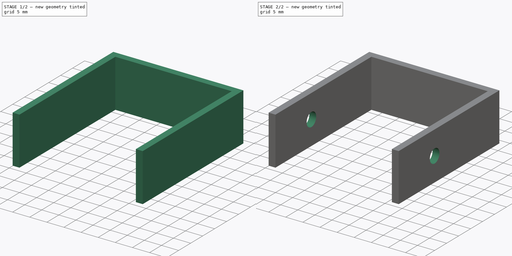
[diagram: build sequence overview — one tinted view per stage of 2, left to right]
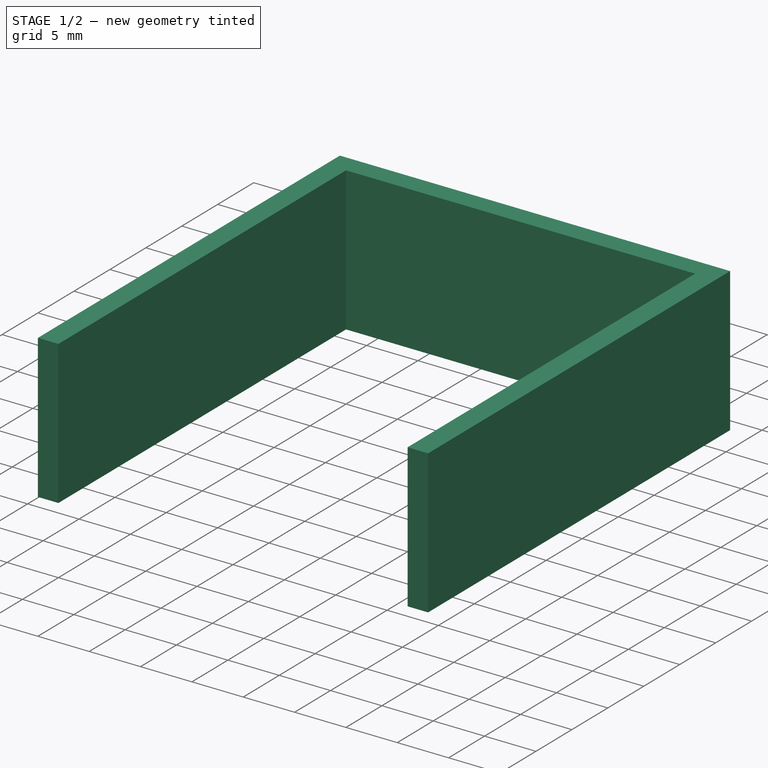
[diagram: stage 1 of 2 — iso view after this stage's code; geometry added in this stage tinted green]
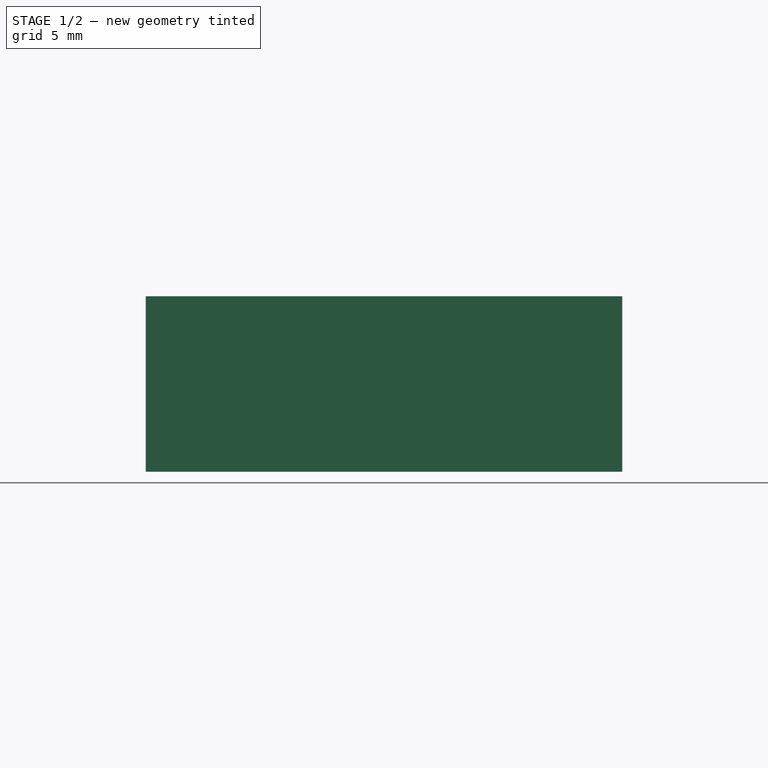
[diagram: stage 1 of 2 — front view after this stage's code; geometry added in this stage tinted green]
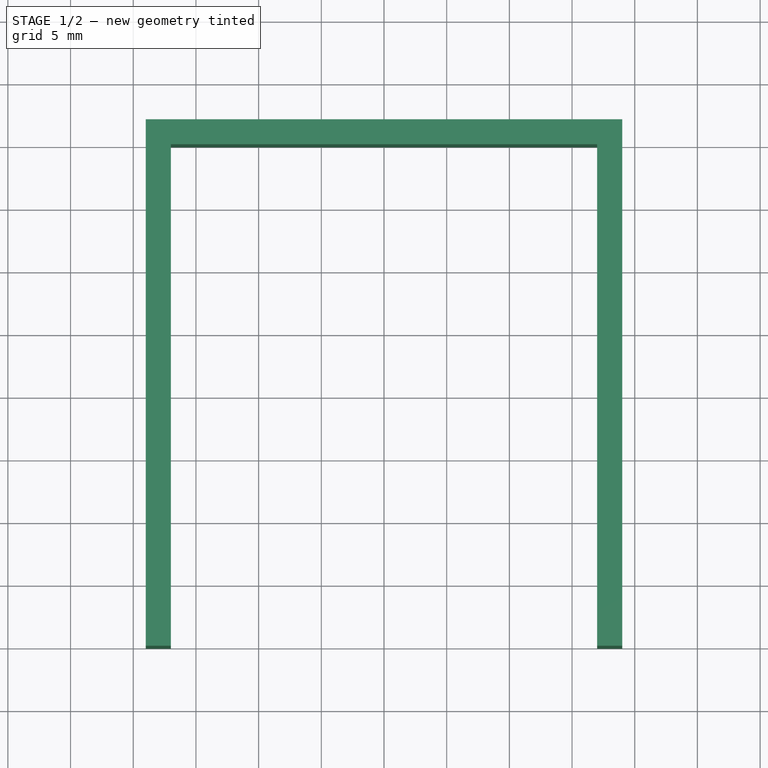
[diagram: stage 1 of 2 — top view after this stage's code; geometry added in this stage tinted green]
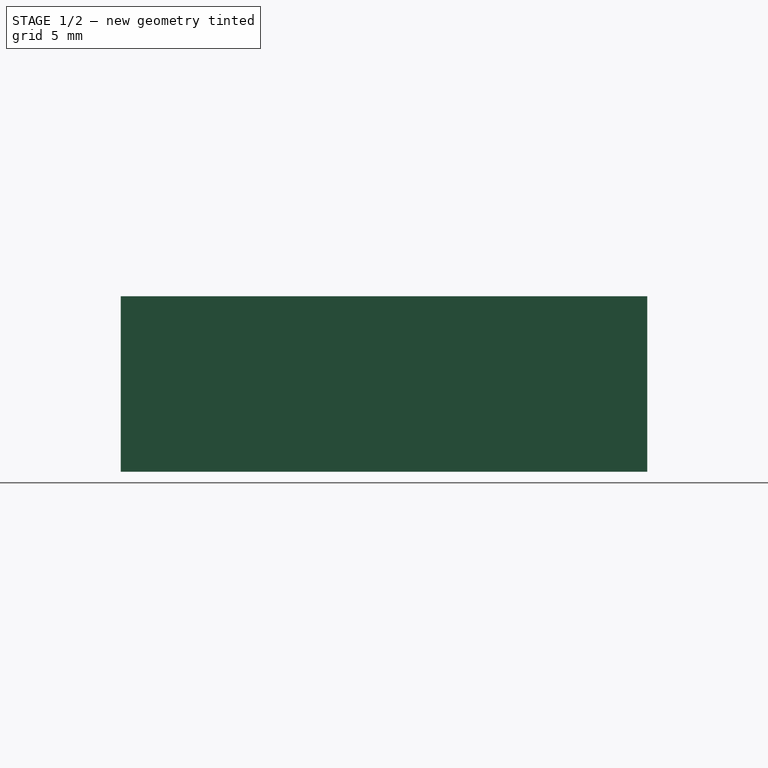
[diagram: stage 1 of 2 — right view after this stage's code; geometry added in this stage tinted green]
FCSTD DOCUMENT  (FreeCAD 0.19R24291 (Git))
Label: bird house fix 1
License: All rights reserved
LicenseURL: http://en.wikipedia.org/wiki/All_rights_reserved
objects: Sketcher::SketchObject×2, PartDesign::Pad×1, PartDesign::Pocket×1, PartDesign::Body×1
note: 7 computed .brp shape members not serialized (recipe doc carries the construction recipe); baked Part::Feature solids carry a one-line shape summary decoded from their .brp

FEATURE [Sketcher::SketchObject] Sketch
  FullyConstrained = true
  MapMode = 5
  Support = -> [XY_Plane]
  sketch-geometry (8):
    g0: LineSegment StartX=-17 StartY=-40 StartZ=0 EndX=-17 EndY=0 EndZ=0
    g1: LineSegment StartX=-17 StartY=0 StartZ=0 EndX=17 EndY=0 EndZ=0
    g2: LineSegment StartX=17 StartY=0 StartZ=0 EndX=17 EndY=-40 EndZ=0
    g3: LineSegment StartX=17 StartY=-40 StartZ=0 EndX=19 EndY=-40 EndZ=0
    g4: LineSegment StartX=19 StartY=-40 StartZ=0 EndX=19 EndY=2 EndZ=0
    g5: LineSegment StartX=19 StartY=2 StartZ=0 EndX=-19 EndY=2 EndZ=0
    g6: LineSegment StartX=-19 StartY=2 StartZ=0 EndX=-19 EndY=-40 EndZ=0
    g7: LineSegment StartX=-19 StartY=-40 StartZ=0 EndX=-17 EndY=-40 EndZ=0
  constraints (22):
    c: PointOnObject(g0,g-1)
    c: Vertical(g0)
    c: Coincident(g0,g1)
    c: PointOnObject(g1,g-1)
    c: Coincident(g1,g2)
    c: Vertical(g2)
    c: Coincident(g2,g3)
    c: Horizontal(g3)
    c: Coincident(g3,g4)
    c: Vertical(g4)
    c: Coincident(g4,g5)
    c: Coincident(g5,g6)
    c: Vertical(g6)
    c: Coincident(g6,g7)
    c: Coincident(g7,g0)
    c: Horizontal(g7)
    c: Symmetric(g0,g2,g-2)
    c: DistanceY(g0,g0) = 40
    c: DistanceX(g7,g7) = 2
    c: DistanceY(g0,g5) = 2
    c: Symmetric(g4,g5,g-2)
    c: DistanceX(g0,g1) = 34
FEATURE [PartDesign::Pad] Pad
  Direction = (1,1,1)
  Length = 14
  Length2 = 100
  Profile = -> Sketch
  Type = 0
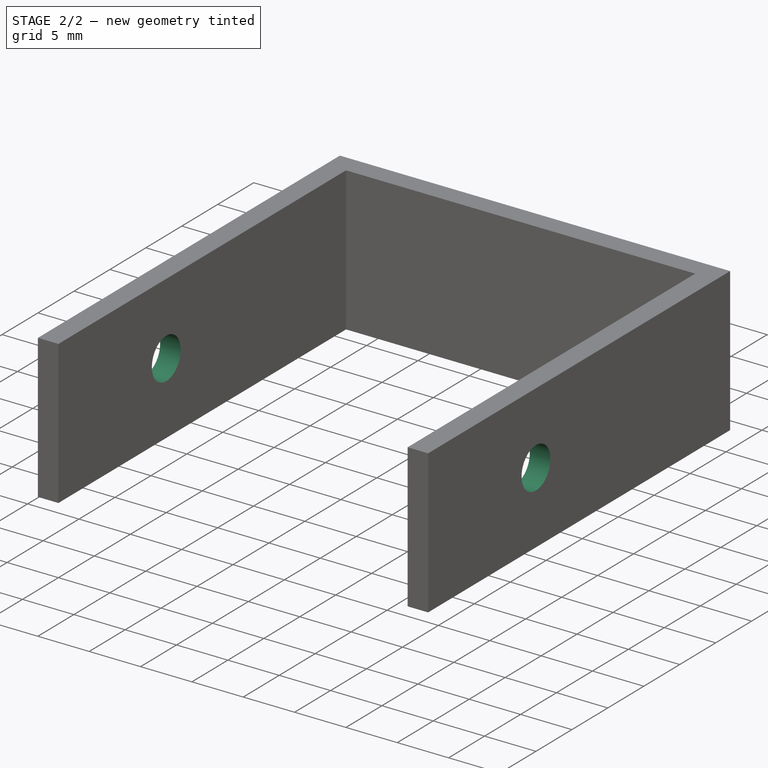
[diagram: stage 2 of 2 — iso view after this stage's code; geometry added in this stage tinted green]
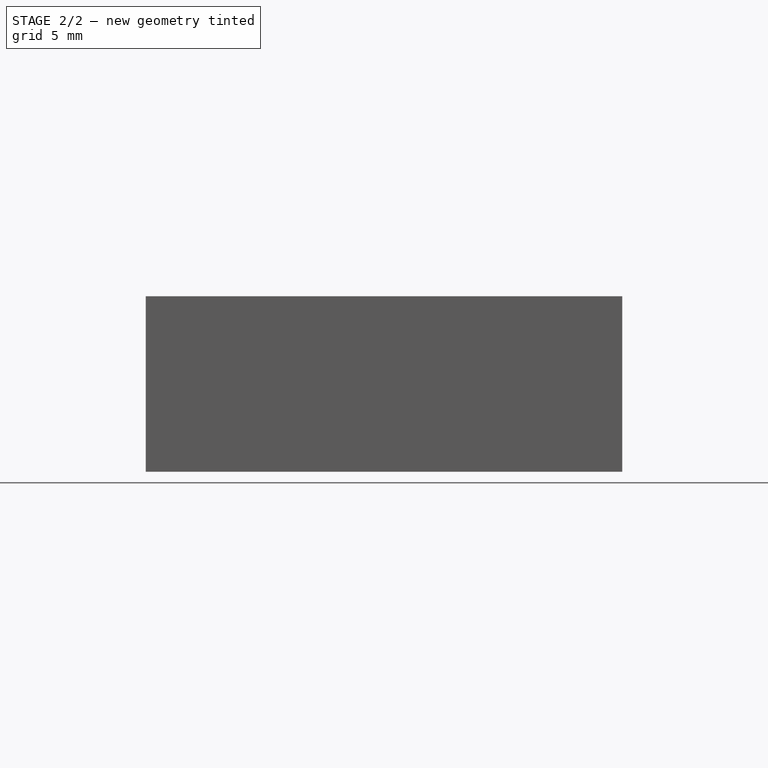
[diagram: stage 2 of 2 — front view after this stage's code; geometry added in this stage tinted green]
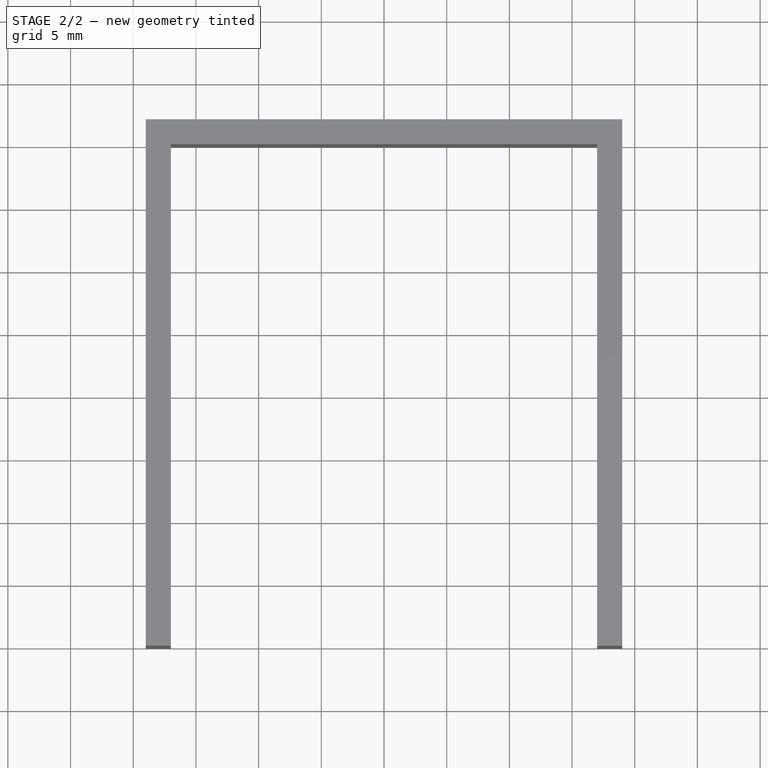
[diagram: stage 2 of 2 — top view after this stage's code; geometry added in this stage tinted green]
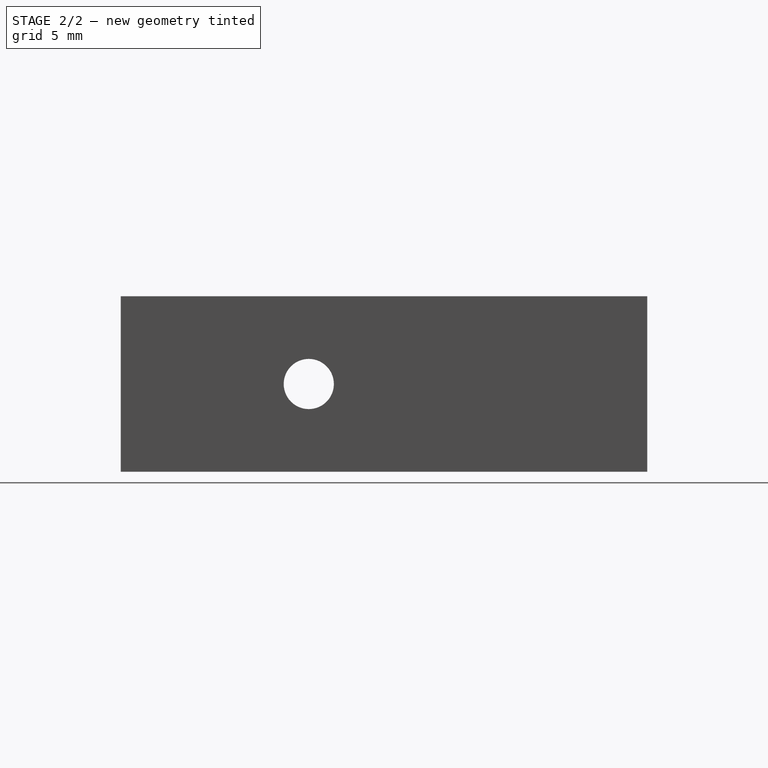
[diagram: stage 2 of 2 — right view after this stage's code; geometry added in this stage tinted green]
FEATURE [Sketcher::SketchObject] Sketch001
  ExternalGeometry = -> [Pad]
  FullyConstrained = true
  MapMode = 5
  Placement = pos=(19,0,0) rot=(0.57735,0.57735,0.57735;2.0944rad)
  Support = -> [Pad]
  sketch-geometry (2):
    g0: Circle CenterX=-25 CenterY=7 CenterZ=0 NormalX=0 NormalY=0 NormalZ=1 AngleXU=0 Radius=2
    g1: LineSegment StartX=-40 StartY=7 StartZ=0 EndX=2 EndY=7 EndZ=0
  constraints (5):
    c: Diameter(g0) = 4
    c: Symmetric(g-4,g-3,g1)
    c: Symmetric(g-3,g-4,g1)
    c: PointOnObject(g0,g1)
    c: DistanceX(g1,g0) = 15
FEATURE [PartDesign::Pocket] Pocket
  BaseFeature = -> Pad
  Length = 5
  Length2 = 100
  Profile = -> Sketch001
  Type = 1
FEATURE [PartDesign::Body] Body
  Group = -> [Sketch,Pad,Sketch001,Pocket]
  Origin = -> Origin
  Tip = -> Pocket
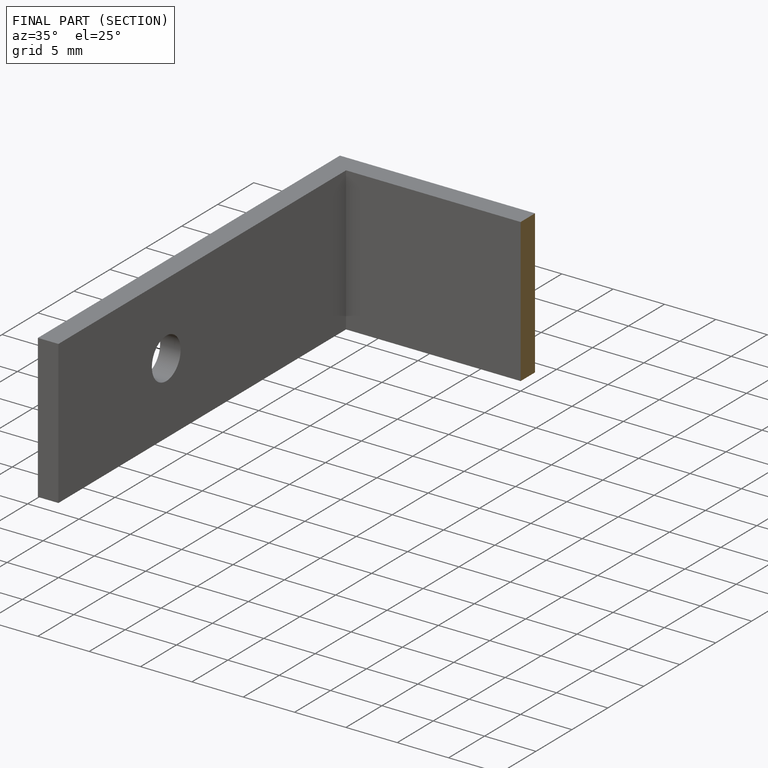
[diagram: finished part — half-section view (interior)]
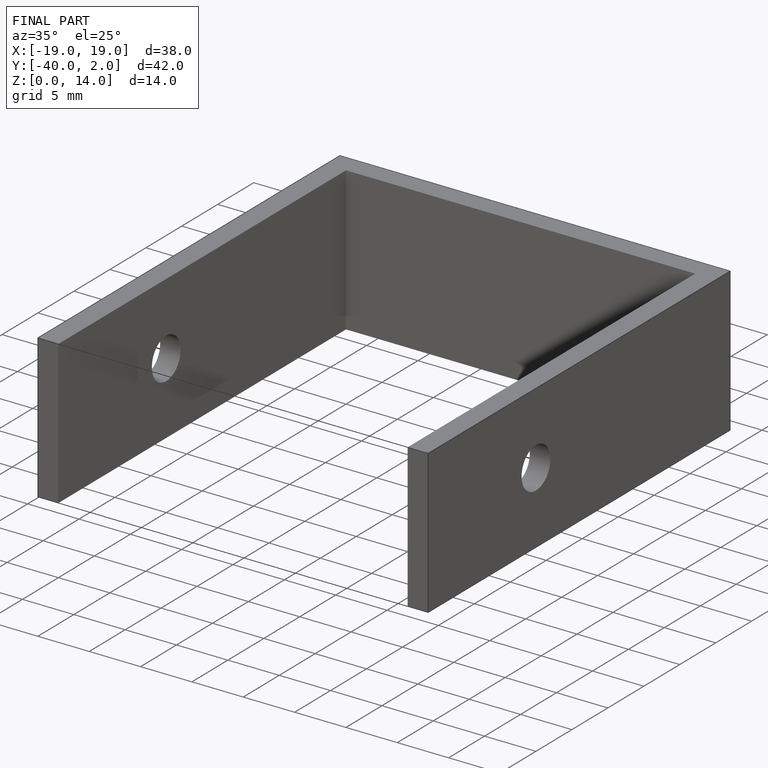
[diagram: finished part — iso view with bounding-box wireframe]
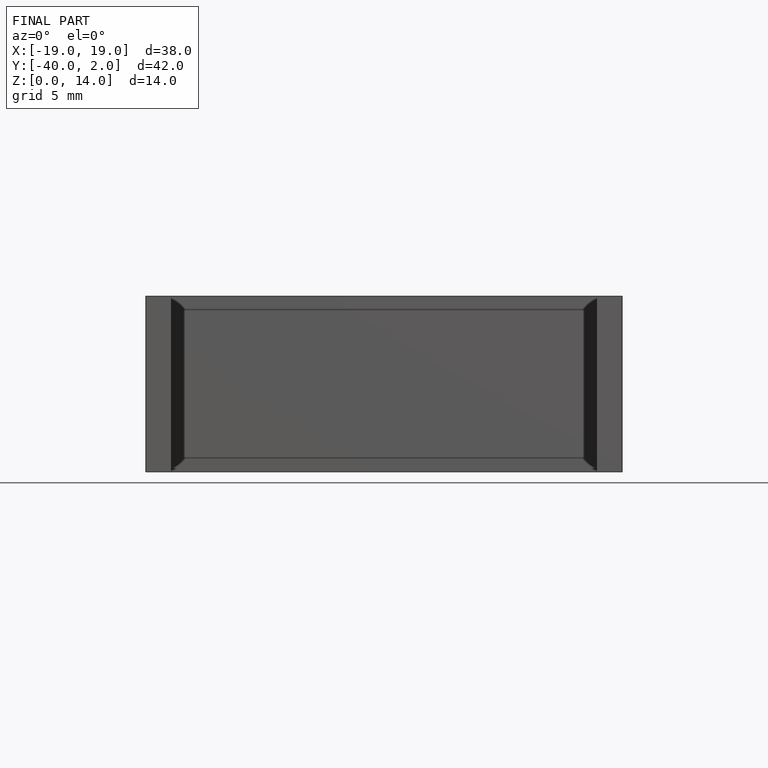
[diagram: finished part — front view with bounding-box wireframe]
